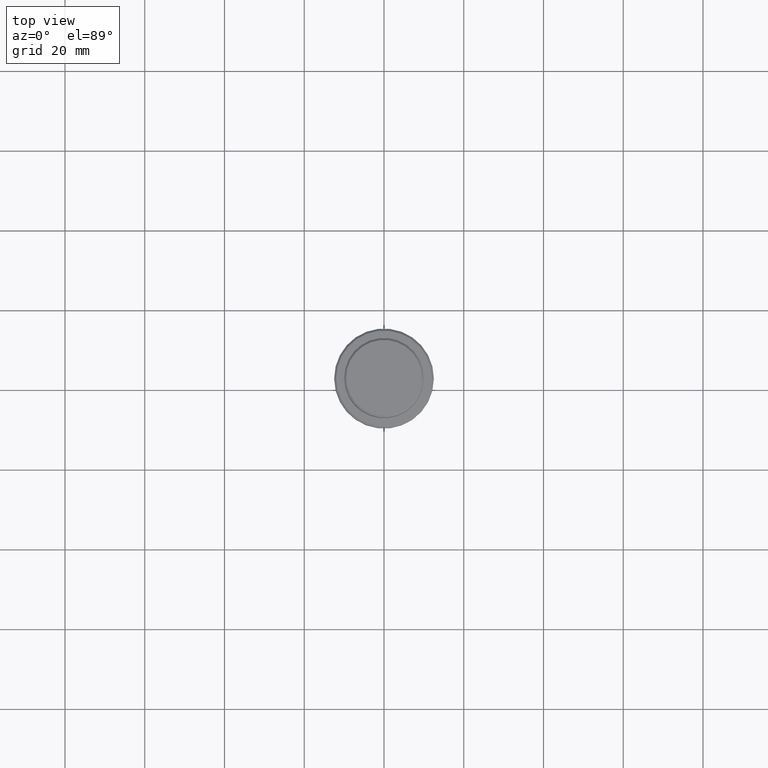
[diagram: clean part render]
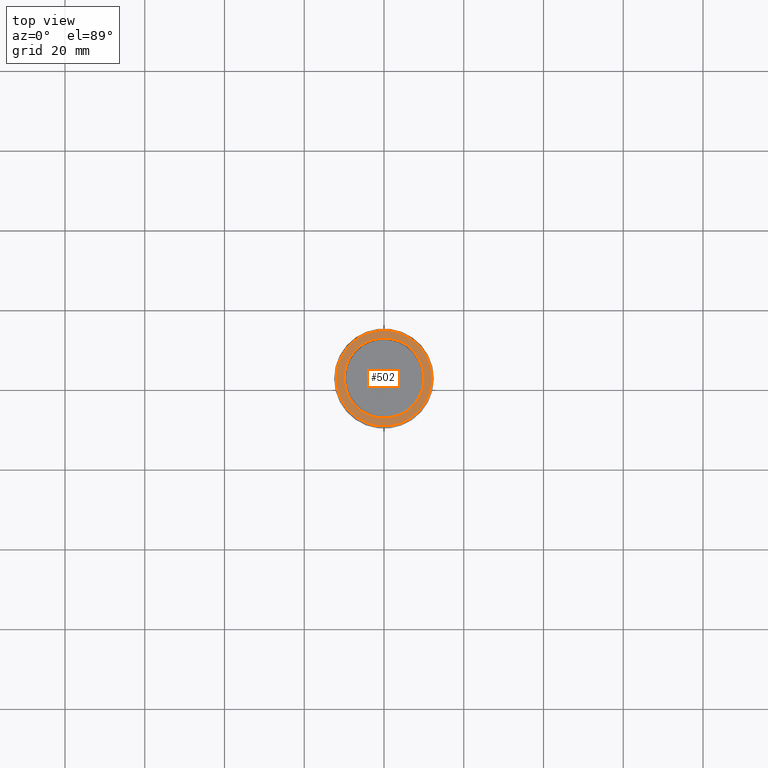
[diagram: same view with one face highlighted and labeled with its STEP entity id]
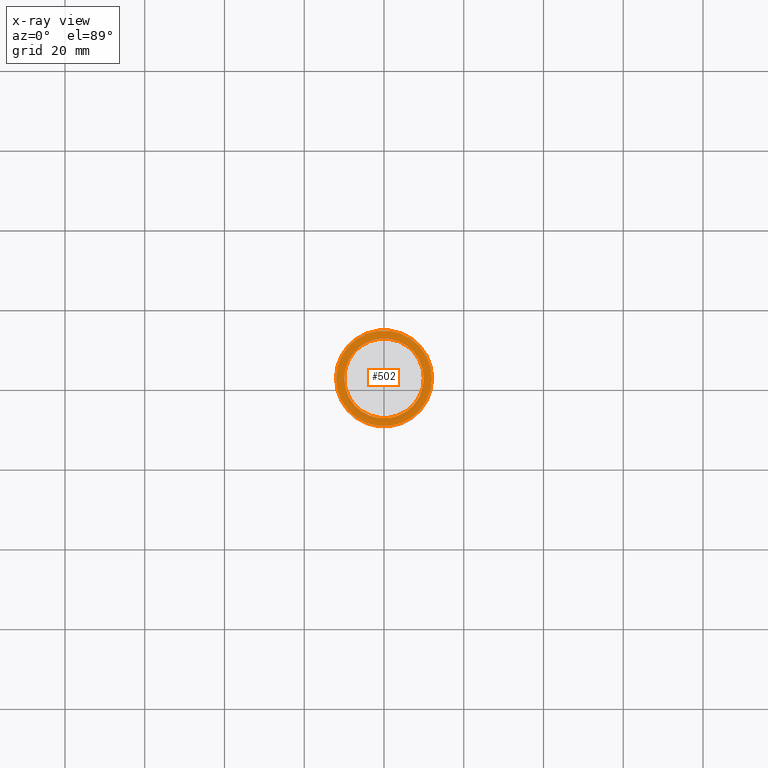
[diagram: x-ray of the same camera — body ghosted, the highlighted face saturated]
A machine part, top view. The second image highlights one B-rep face of the part: STEP entity #502.
The next image is the same camera in x-ray: the body ghosted, the highlighted face saturated — about 0% of this face is hidden behind the body in this view.
In plain terms, the highlighted planar face has unit normal (0, -0, 1).
Its self-contained STEP definition (entity closure, byte-faithful):
#12 = AXIS2_PLACEMENT_3D ( 'NONE', #625, #1073, #199 ) ;
#27 = EDGE_CURVE ( 'NONE', #1100, #138, #714, .T. ) ;
#41 = DIRECTION ( 'NONE',  ( -0.000000000000000000, -0.000000000000000000, 1.000000000000000000 ) ) ;
#94 = CARTESIAN_POINT ( 'NONE',  ( 9.999999999999992895, 0.000000000000000000, -9.000000000000000000 ) ) ;
#138 = VERTEX_POINT ( 'NONE', #1393 ) ;
#199 = DIRECTION ( 'NONE',  ( 1.000000000000000000, 0.000000000000000000, 0.000000000000000000 ) ) ;
#265 = CIRCLE ( 'NONE', #1227, 12.00000000000001066 ) ;
#310 = FACE_OUTER_BOUND ( 'NONE', #347, .T. ) ;
#321 = EDGE_CURVE ( 'NONE', #525, #1275, #392, .T. ) ;
#327 = DIRECTION ( 'NONE',  ( 1.000000000000000000, 0.000000000000000000, 0.000000000000000000 ) ) ;
#347 = EDGE_LOOP ( 'NONE', ( #1105, #1347 ) ) ;
#348 = CIRCLE ( 'NONE', #923, 9.999999999999992895 ) ;
#365 = DIRECTION ( 'NONE',  ( 1.000000000000000000, 0.000000000000000000, 0.000000000000000000 ) ) ;
#375 = DIRECTION ( 'NONE',  ( 1.000000000000000000, 0.000000000000000000, 0.000000000000000000 ) ) ;
#390 = EDGE_CURVE ( 'NONE', #138, #1100, #265, .T. ) ;
#392 = CIRCLE ( 'NONE', #875, 9.999999999999992895 ) ;
#398 = EDGE_LOOP ( 'NONE', ( #499, #1252 ) ) ;
#419 = DIRECTION ( 'NONE',  ( -0.000000000000000000, -0.000000000000000000, 1.000000000000000000 ) ) ;
#454 = CARTESIAN_POINT ( 'NONE',  ( -9.999999999999992895, 1.224646799147352468E-15, -9.000000000000000000 ) ) ;
#499 = ORIENTED_EDGE ( 'NONE', *, *, #321, .T. ) ;
#502 = ADVANCED_FACE ( 'NONE', ( #310, #1285 ), #1300, .T. ) ;
#525 = VERTEX_POINT ( 'NONE', #94 ) ;
#614 = CARTESIAN_POINT ( 'NONE',  ( 12.00000000000001066, 1.500192328955508326E-15, -9.000000000000000000 ) ) ;
#625 = CARTESIAN_POINT ( 'NONE',  ( 0.000000000000000000, 9.499999999999992895, -9.000000000000000000 ) ) ;
#644 = CARTESIAN_POINT ( 'NONE',  ( 0.000000000000000000, 0.000000000000000000, -9.000000000000000000 ) ) ;
#651 = DIRECTION ( 'NONE',  ( 0.000000000000000000, 0.000000000000000000, -1.000000000000000000 ) ) ;
#714 = CIRCLE ( 'NONE', #1160, 12.00000000000001066 ) ;
#875 = AXIS2_PLACEMENT_3D ( 'NONE', #1310, #651, #365 ) ;
#923 = AXIS2_PLACEMENT_3D ( 'NONE', #1121, #1332, #1008 ) ;
#1008 = DIRECTION ( 'NONE',  ( 1.000000000000000000, 0.000000000000000000, 0.000000000000000000 ) ) ;
#1073 = DIRECTION ( 'NONE',  ( 0.000000000000000000, -0.000000000000000000, 1.000000000000000000 ) ) ;
#1100 = VERTEX_POINT ( 'NONE', #614 ) ;
#1105 = ORIENTED_EDGE ( 'NONE', *, *, #390, .T. ) ;
#1121 = CARTESIAN_POINT ( 'NONE',  ( 0.000000000000000000, 0.000000000000000000, -9.000000000000000000 ) ) ;
#1142 = CARTESIAN_POINT ( 'NONE',  ( 0.000000000000000000, 0.000000000000000000, -9.000000000000000000 ) ) ;
#1160 = AXIS2_PLACEMENT_3D ( 'NONE', #644, #419, #327 ) ;
#1227 = AXIS2_PLACEMENT_3D ( 'NONE', #1142, #41, #375 ) ;
#1252 = ORIENTED_EDGE ( 'NONE', *, *, #1381, .T. ) ;
#1275 = VERTEX_POINT ( 'NONE', #454 ) ;
#1285 = FACE_BOUND ( 'NONE', #398, .T. ) ;
#1300 = PLANE ( 'NONE',  #12 ) ;
#1310 = CARTESIAN_POINT ( 'NONE',  ( 0.000000000000000000, 0.000000000000000000, -9.000000000000000000 ) ) ;
#1332 = DIRECTION ( 'NONE',  ( 0.000000000000000000, 0.000000000000000000, -1.000000000000000000 ) ) ;
#1347 = ORIENTED_EDGE ( 'NONE', *, *, #27, .T. ) ;
#1381 = EDGE_CURVE ( 'NONE', #1275, #525, #348, .T. ) ;
#1393 = CARTESIAN_POINT ( 'NONE',  ( -12.00000000000001066, 0.000000000000000000, -9.000000000000000000 ) ) ;